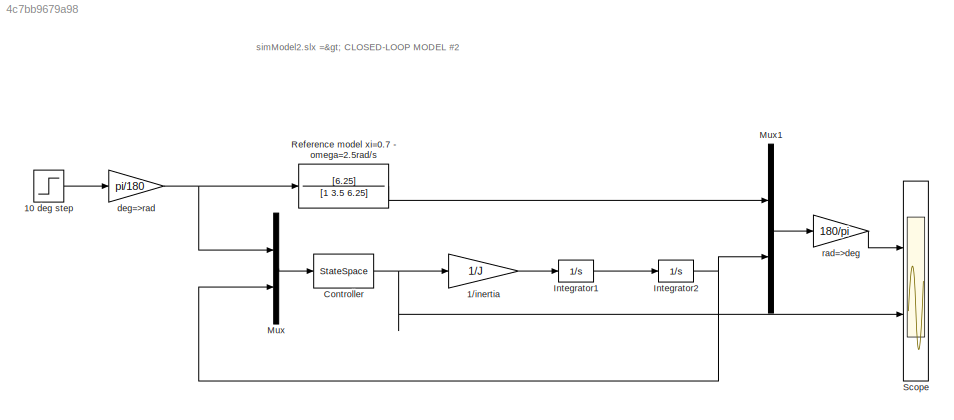
MODEL slx_4c7bb9679a98
KIND model
CONFIG AbsTol = auto
CONFIG EnableMultiTasking = on
CONFIG FixedStep = auto
CONFIG MaxStep = auto
CONFIG MinStep = auto
CONFIG RelTol = 1e-3
CONFIG SampleTimeConstraint = Unconstrained
CONFIG Solver = ode45
CONFIG SolverName = ode45
CONFIG StartTime = 0.0
CONFIG StopTime = 10.0
BLOCK [Gain] 1//inertia
  Gain = 1/J
BLOCK [Step] 10 deg step
  After = 10
  SampleTime = 0
BLOCK [StateSpace] Controller
  A = K.a
  B = K.b
  C = K.c
  D = K.d
  InitialCondition = 0
  Ports = [1, 1]
BLOCK [Integrator] Integrator1
  Ports = [1, 1]
BLOCK [Integrator] Integrator2
  Ports = [1, 1]
BLOCK [Mux] Mux
  DisplayOption = bar
  Inputs = 2
  Ports = [2, 1]
BLOCK [Mux] Mux1
  DisplayOption = bar
  Inputs = 2
  Ports = [2, 1]
BLOCK [TransferFcn] Reference model xi=0.7 - omega=2.5rad//s
  Denominator = [1 3.5 6.25]
  Numerator = [6.25]
BLOCK [Scope] Scope
  Floating = off
  NumInputPorts = 2
  Ports = [2]
  ScopeSpecificationString = Simulink.scopes.TimeScopeBlockCfg('CurrentConfiguration', extmgr.ConfigurationSet(extmgr.Configuration('Core','General UI',true),extmgr.Configuration('Core','Source UI',true),extmgr.Configuration('Sources','WiredSimulink',true,'DataLoggingSaveFormat','StructureWithTime','DataLoggingDecimation','1','DataLoggingDecimateData',true),extmgr.Configuration('Visuals','Time Domain',true,'SerializedDisplays...<+2308ch>
BLOCK [Gain] deg=>rad
  Gain = pi/180
BLOCK [Gain] rad=>deg
  Gain = 180/pi
ANNOTATION (root): simModel2.slx => CLOSED-LOOP MODEL #2
LINE 1//inertia:1 -> Integrator1:1
LINE 10 deg step:1 -> deg=>rad:1
NET Controller:1 -> 1//inertia:1, Scope:2
LINE Integrator1:1 -> Integrator2:1
NET Integrator2:1 -> Mux1:2, Mux:2
LINE Mux1:1 -> rad=>deg:1
LINE Mux:1 -> Controller:1
LINE Reference model xi=0.7 - omega=2.5rad//s:1 -> Mux1:1
NET deg=>rad:1 -> Mux:1, Reference model xi=0.7 - omega=2.5rad//s:1
LINE rad=>deg:1 -> Scope:1
note: NET lines group one-source signal fan-out (src -> all destinations, sorted); 1:1 wires keep LINE
